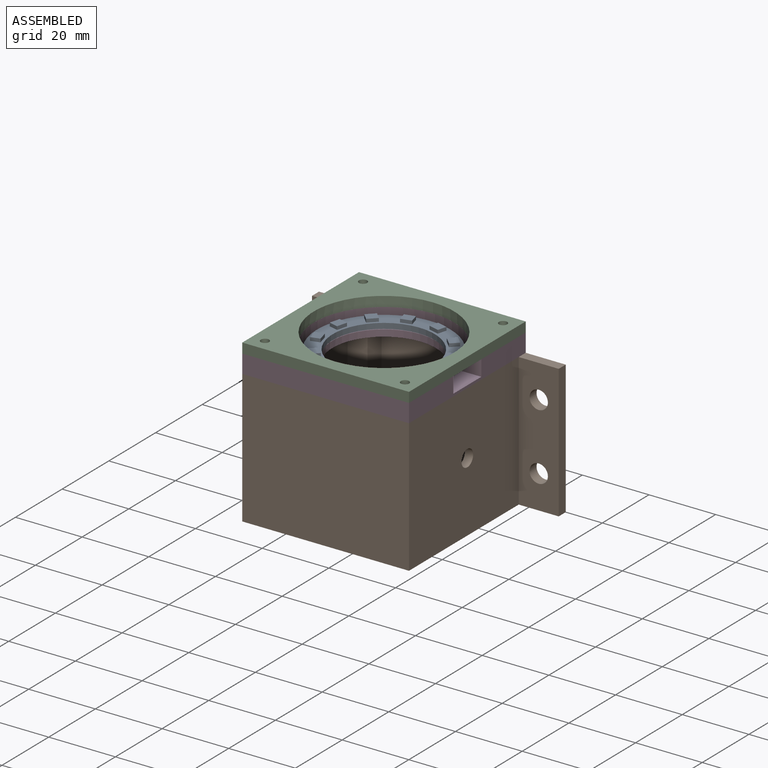
[diagram: assembled view]
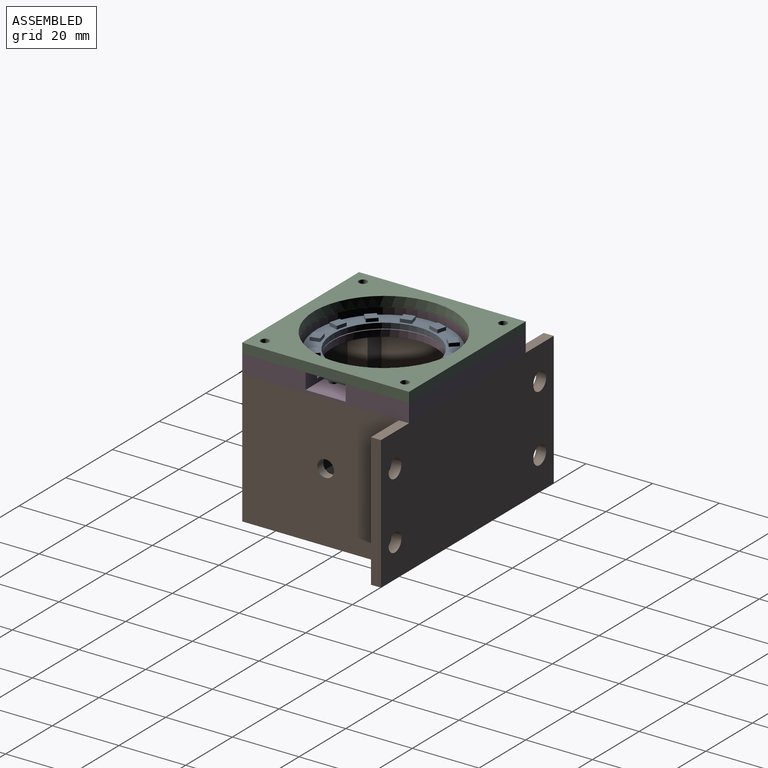
[diagram: assembled view, second angle]
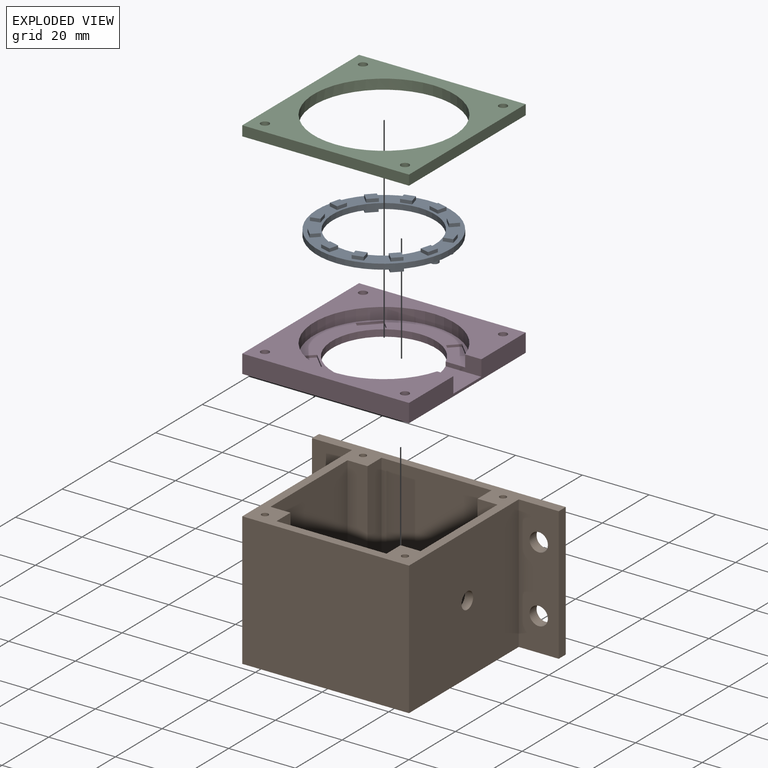
[diagram: exploded view]
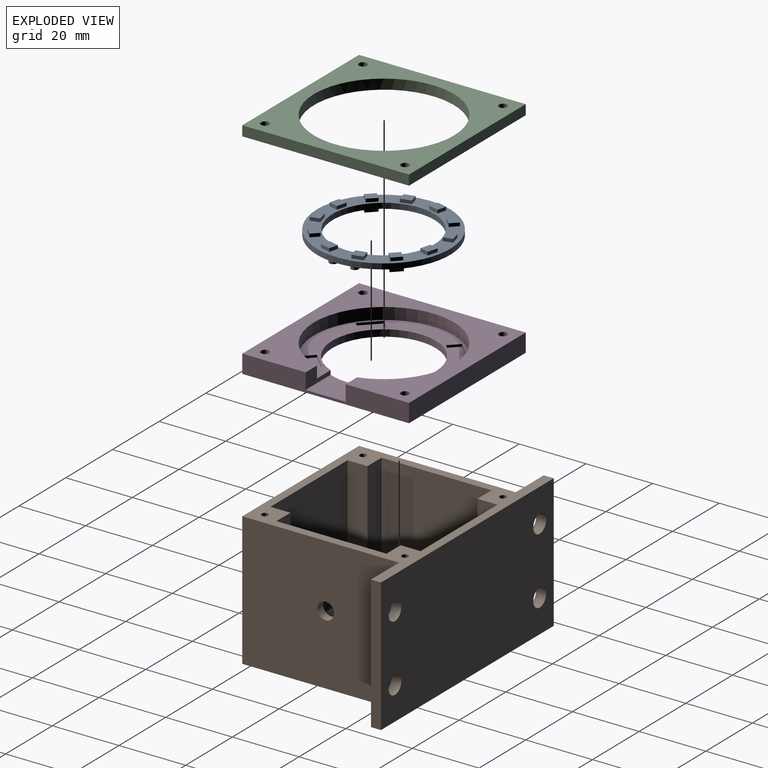
[diagram: exploded view, second angle]
ASSEMBLY  parts=4 mates=4
PART A: 88 faces, bbox 40x40x4.1 mm
  f0: plane 40x40mm, normal (0,0,1), area 415.5mm2, adj f1,f2,f3,f29,f30,f31,f32,f34
  f1: plane 2.4x1.39mm, normal (0.5,0.87,0), area 2.8mm2, adj f0,f2,f3,f86
  f2: plane 2.75x1.59mm, normal (0.87,-0.5,0), area 3.2mm2, adj f0,f1,f86,f87
  f3: plane 2.75x1.59mm, normal (-0.87,0.5,0), area 3.2mm2, adj f0,f1,f86,f87
  f4: cylinder r=1.18mm len=2.37mm, axis (0,0,-1), area 11.2mm2, adj f5,f28
  f5: plane 2.37x2.37mm, normal (0,0,-1), area 4.4mm2, adj f4
  f6: plane 3.5x1.5mm, normal (1,0,0), area 5.2mm2, adj f7,f9,f10,f28
  f7: plane 1.5x1.5mm, normal (0,1,0), area 2.2mm2, adj f6,f8,f10,f28
  f8: plane 3.5x1.5mm, normal (-1,0,0), area 5.2mm2, adj f7,f9,f10,f28
  f9: plane 1.5x1.5mm, normal (0,-1,0), area 2.2mm2, adj f6,f8,f10,f28
  f10: plane 3.5x1.5mm, normal (0,0,-1), area 5.2mm2, adj f6,f7,f8,f9
  f11: plane 3.5x1.5mm, normal (-1,0,0), area 5.2mm2, adj f12,f14,f15,f28
  f12: plane 1.5x1.5mm, normal (0,-1,0), area 2.2mm2, adj f11,f13,f15,f28
  f13: plane 3.5x1.5mm, normal (1,0,0), area 5.2mm2, adj f12,f14,f15,f28
  f14: plane 1.5x1.5mm, normal (0,1,0), area 2.2mm2, adj f11,f13,f15,f28
  f15: plane 3.5x1.5mm, normal (0,0,-1), area 5.2mm2, adj f11,f12,f13,f14
  f16: plane 3.5x1.5mm, normal (0,-1,0), area 5.2mm2, adj f17,f19,f20,f28
  f17: plane 1.5x1.5mm, normal (1,0,0), area 2.2mm2, adj f16,f18,f20,f28
  f18: plane 3.5x1.5mm, normal (0,1,0), area 5.2mm2, adj f17,f19,f20,f28
  f19: plane 1.5x1.5mm, normal (-1,0,0), area 2.2mm2, adj f16,f18,f20,f28
  f20: plane 3.5x1.5mm, normal (0,0,-1), area 5.2mm2, adj f16,f17,f18,f19
  f21: plane 3.5x1.5mm, normal (0,1,0), area 5.2mm2, adj f22,f24,f25,f28
  f22: plane 1.5x1.5mm, normal (-1,0,0), area 2.2mm2, adj f21,f23,f25,f28
  f23: plane 3.5x1.5mm, normal (0,-1,0), area 5.2mm2, adj f22,f24,f25,f28
  f24: plane 1.5x1.5mm, normal (1,0,0), area 2.2mm2, adj f21,f23,f25,f28
  f25: plane 3.5x1.5mm, normal (0,0,-1), area 5.2mm2, adj f21,f22,f23,f24
  f26: cylinder r=1.18mm len=2.37mm, axis (0,0,-1), area 11.2mm2, adj f27,f28
  f27: plane 2.37x2.37mm, normal (0,0,-1), area 4.4mm2, adj f26
  f28: plane 40x40mm, normal (0,0,-1), area 491.4mm2, adj f4,f6,f7,f8,f9,f11,f12,f13
  f29: plane 2.75x1.59mm, normal (-0.5,0.87,0), area 3.2mm2, adj f0,f30,f32,f33
  f30: plane 2.4x1.39mm, normal (0.87,0.5,0), area 2.8mm2, adj f0,f29,f31,f33
  f31: plane 2.75x1.59mm, normal (0.5,-0.87,0), area 3.2mm2, adj f0,f30,f32,f33
  f32: plane 2.4x1.39mm, normal (-0.87,-0.5,0), area 2.8mm2, adj f0,f29,f31,f33
  f33: plane 4.14x3.99mm, normal (0,0,1), area 8.8mm2, adj f29,f30,f31,f32
  f34: plane 3.18x1mm, normal (-1,0,0), area 3.2mm2, adj f0,f35,f37,f38
  f35: plane 2.77x1mm, normal (0,1,0), area 2.8mm2, adj f0,f34,f36,f38
  f36: plane 3.18x1mm, normal (1,0,0), area 3.2mm2, adj f0,f35,f37,f38
  f37: plane 2.77x1mm, normal (0,-1,0), area 2.8mm2, adj f0,f34,f36,f38
  f38: plane 3.18x2.77mm, normal (0,0,1), area 8.8mm2, adj f34,f35,f36,f37
  f39: plane 2.75x1.59mm, normal (-0.5,-0.87,0), area 3.2mm2, adj f0,f40,f42,f43
  f40: plane 2.4x1.39mm, normal (-0.87,0.5,0), area 2.8mm2, adj f0,f39,f41,f43
  f41: plane 2.75x1.59mm, normal (0.5,0.87,0), area 3.2mm2, adj f0,f40,f42,f43
  f42: plane 2.4x1.39mm, normal (0.87,-0.5,0), area 2.8mm2, adj f0,f39,f41,f43
  f43: plane 4.14x3.99mm, normal (0,0,1), area 8.8mm2, adj f39,f40,f41,f42
  f44: plane 2.75x1.59mm, normal (0.5,-0.87,0), area 3.2mm2, adj f0,f45,f47,f48
  f45: plane 2.4x1.39mm, normal (-0.87,-0.5,0), area 2.8mm2, adj f0,f44,f46,f48
  f46: plane 2.75x1.59mm, normal (-0.5,0.87,0), area 3.2mm2, adj f0,f45,f47,f48
  f47: plane 2.4x1.39mm, normal (0.87,0.5,0), area 2.8mm2, adj f0,f44,f46,f48
  f48: plane 4.14x3.99mm, normal (0,0,1), area 8.8mm2, adj f44,f45,f46,f47
  f49: plane 3.18x1mm, normal (1,0,0), area 3.2mm2, adj f0,f50,f52,f53
  f50: plane 2.77x1mm, normal (0,-1,0), area 2.8mm2, adj f0,f49,f51,f53
  f51: plane 3.18x1mm, normal (-1,0,0), area 3.2mm2, adj f0,f50,f52,f53
  f52: plane 2.77x1mm, normal (0,1,0), area 2.8mm2, adj f0,f49,f51,f53
  f53: plane 3.18x2.77mm, normal (0,0,1), area 8.8mm2, adj f49,f50,f51,f52
  f54: plane 2.75x1.59mm, normal (0.5,0.87,0), area 3.2mm2, adj f0,f55,f57,f58
  f55: plane 2.4x1.39mm, normal (0.87,-0.5,0), area 2.8mm2, adj f0,f54,f56,f58
  f56: plane 2.75x1.59mm, normal (-0.5,-0.87,0), area 3.2mm2, adj f0,f55,f57,f58
  f57: plane 2.4x1.39mm, normal (-0.87,0.5,0), area 2.8mm2, adj f0,f54,f56,f58
  f58: plane 4.14x3.99mm, normal (0,0,1), area 8.8mm2, adj f54,f55,f56,f57
  f59: plane 2.75x1.59mm, normal (0.87,0.5,0), area 3.2mm2, adj f0,f60,f62,f63
  f60: plane 2.4x1.39mm, normal (0.5,-0.87,0), area 2.8mm2, adj f0,f59,f61,f63
  f61: plane 2.75x1.59mm, normal (-0.87,-0.5,0), area 3.2mm2, adj f0,f60,f62,f63
  f62: plane 2.4x1.39mm, normal (-0.5,0.87,0), area 2.8mm2, adj f0,f59,f61,f63
  f63: plane 4.14x3.99mm, normal (0,0,1), area 8.8mm2, adj f59,f60,f61,f62
  f64: plane 2.75x1.59mm, normal (0.87,-0.5,0), area 3.2mm2, adj f0,f65,f67,f68
  f65: plane 2.4x1.39mm, normal (-0.5,-0.87,0), area 2.8mm2, adj f0,f64,f66,f68
  f66: plane 2.75x1.59mm, normal (-0.87,0.5,0), area 3.2mm2, adj f0,f65,f67,f68
  f67: plane 2.4x1.39mm, normal (0.5,0.87,0), area 2.8mm2, adj f0,f64,f66,f68
  f68: plane 4.14x3.99mm, normal (0,0,1), area 8.8mm2, adj f64,f65,f66,f67
  f69: plane 3.18x1mm, normal (0,-1,0), area 3.2mm2, adj f0,f70,f72,f73
  f70: plane 2.77x1mm, normal (-1,0,0), area 2.8mm2, adj f0,f69,f71,f73
  f71: plane 3.18x1mm, normal (0,1,0), area 3.2mm2, adj f0,f70,f72,f73
  f72: plane 2.77x1mm, normal (1,0,0), area 2.8mm2, adj f0,f69,f71,f73
  f73: plane 3.18x2.77mm, normal (0,0,1), area 8.8mm2, adj f69,f70,f71,f72
  f74: plane 2.75x1.59mm, normal (-0.87,-0.5,0), area 3.2mm2, adj f0,f75,f77,f78
  f75: plane 2.4x1.39mm, normal (-0.5,0.87,0), area 2.8mm2, adj f0,f74,f76,f78
  f76: plane 2.75x1.59mm, normal (0.87,0.5,0), area 3.2mm2, adj f0,f75,f77,f78
  f77: plane 2.4x1.39mm, normal (0.5,-0.87,0), area 2.8mm2, adj f0,f74,f76,f78
  f78: plane 4.14x3.99mm, normal (0,0,1), area 8.8mm2, adj f74,f75,f76,f77
  f79: cylinder r=15.3mm len=30.6mm, axis (0,0,-1), area 156.7mm2, adj f0,f28
  f80: cylinder r=20mm len=40mm, axis (0,0,1), area 204.8mm2, adj f0,f28
  f81: plane 3.18x2.77mm, normal (0,0,1), area 8.8mm2, adj f82,f83,f84,f85
  f82: plane 2.77x1mm, normal (-1,0,0), area 2.8mm2, adj f0,f81,f83,f85
  f83: plane 3.18x1mm, normal (0,-1,0), area 3.2mm2, adj f0,f81,f82,f84
  f84: plane 2.77x1mm, normal (1,0,0), area 2.8mm2, adj f0,f81,f83,f85
  f85: plane 3.18x1mm, normal (0,1,0), area 3.2mm2, adj f0,f81,f82,f84
  f86: plane 4.14x3.99mm, normal (0,0,1), area 8.8mm2, adj f1,f2,f3,f87
  f87: plane 2.4x1.39mm, normal (-0.5,-0.87,0), area 2.8mm2, adj f0,f2,f3,f86
PART B: 52 faces, bbox 50x74x40 mm
  f0: plane 45x45mm, normal (0,0,1), area 1786.8mm2, adj f10,f11,f12,f13,f14,f15,f16,f21
  f1: plane 74x50mm, normal (0,0,-1), area 2502.4mm2, adj f3,f4,f5,f6,f7,f25,f26,f27
  f2: plane 74x50mm, normal (0,0,1), area 678.4mm2, adj f3,f4,f5,f6,f7,f10,f11,f12
  f3: plane 40x3mm, normal (0,1,0), area 120mm2, adj f1,f2,f4,f7
  f4: plane 74x40mm, normal (-1,0,0), area 2865mm2, adj f1,f2,f3,f8,f9,f27,f30,f31
  f5: plane 50x40mm, normal (1,0,0), area 2000mm2, adj f1,f2,f6,f28
  f6: plane 47x40mm, normal (0,1,0), area 1860.4mm2, adj f1,f2,f5,f7,f47
  f7: plane 40x12mm, normal (1,0,0), area 432.5mm2, adj f1,f2,f3,f6,f8,f9
  f8: cylinder r=2.75mm len=5.5mm, axis (-1,0,0), area 51.8mm2, adj f4,f7
  f9: cylinder r=2.75mm len=5.5mm, axis (-1,0,0), area 51.8mm2, adj f4,f7
  f10: plane 37.5x33mm, normal (-1,0,0), area 1237.5mm2, adj f0,f2,f11,f32
  f11: plane 37.5x6mm, normal (0,-1,0), area 225mm2, adj f0,f2,f10,f12
  f12: plane 37.5x6mm, normal (-1,0,0), area 225mm2, adj f0,f2,f11,f13
  f13: plane 37.5x33mm, normal (0,-1,0), area 1217.9mm2, adj f0,f2,f12,f14,f47
  f14: plane 37.5x6mm, normal (1,0,0), area 225mm2, adj f0,f2,f13,f15
  f15: plane 37.5x6mm, normal (0,-1,0), area 225mm2, adj f0,f2,f14,f16
  f16: plane 37.5x33mm, normal (1,0,0), area 1237.5mm2, adj f0,f2,f15,f36
  f17: cylinder r=1mm len=20mm, axis (0,0,1), area 125.7mm2, adj f2,f18
  f18: plane 2x2mm, normal (0,0,1), area 3.1mm2, adj f17
  f19: cylinder r=1mm len=20mm, axis (0,0,1), area 125.7mm2, adj f2,f20
  f20: plane 2x2mm, normal (0,0,1), area 3.1mm2, adj f19
  f21: cylinder r=1.88mm len=6.5mm, axis (0,0,-1), area 76.6mm2, adj f0,f22
  f22: plane 3.75x3.75mm, normal (0,0,1), area 6.1mm2, adj f21,f26
  f23: cylinder r=1.88mm len=6.5mm, axis (0,0,-1), area 76.6mm2, adj f0,f24
  f24: plane 3.75x3.75mm, normal (0,0,1), area 6.1mm2, adj f23,f25
  f25: cylinder r=1.25mm len=9mm, axis (0,0,1), area 70.7mm2, adj f1,f24
  f26: cylinder r=1.25mm len=9mm, axis (0,0,1), area 70.7mm2, adj f1,f22
  f27: plane 40x3mm, normal (0,-1,0), area 120mm2, adj f1,f2,f4,f29
  f28: plane 47x40mm, normal (0,-1,0), area 1880mm2, adj f1,f2,f5,f29
  f29: plane 40x12mm, normal (1,0,0), area 432.5mm2, adj f1,f2,f27,f28,f30,f31
  f30: cylinder r=2.75mm len=5.5mm, axis (-1,0,0), area 51.8mm2, adj f4,f29
  f31: cylinder r=2.75mm len=5.5mm, axis (-1,0,0), area 51.8mm2, adj f4,f29
  f32: plane 37.5x6mm, normal (0,1,0), area 225mm2, adj f0,f2,f10,f33
  f33: plane 37.5x6mm, normal (-1,0,0), area 225mm2, adj f0,f2,f32,f34
  f34: plane 37.5x33mm, normal (0,1,0), area 1237.5mm2, adj f0,f2,f33,f35
  f35: plane 37.5x6mm, normal (1,0,0), area 225mm2, adj f0,f2,f34,f36
  f36: plane 37.5x6mm, normal (0,1,0), area 225mm2, adj f0,f2,f16,f35
  f37: cylinder r=1mm len=20mm, axis (0,0,1), area 125.7mm2, adj f2,f38
  f38: plane 2x2mm, normal (0,0,1), area 3.1mm2, adj f37
  f39: cylinder r=1mm len=20mm, axis (0,0,1), area 125.7mm2, adj f2,f40
  f40: plane 2x2mm, normal (0,0,1), area 3.1mm2, adj f39
  f41: cylinder r=1.88mm len=6.5mm, axis (0,0,-1), area 76.6mm2, adj f0,f42
  f42: plane 3.75x3.75mm, normal (0,0,1), area 6.1mm2, adj f41,f46
  f43: cylinder r=1.88mm len=6.5mm, axis (0,0,-1), area 76.6mm2, adj f0,f44
  f44: plane 3.75x3.75mm, normal (0,0,1), area 6.1mm2, adj f43,f45
  f45: cylinder r=1.25mm len=9mm, axis (0,0,1), area 70.7mm2, adj f1,f44
  f46: cylinder r=1.25mm len=9mm, axis (0,0,1), area 70.7mm2, adj f1,f42
  f47: cylinder r=2.5mm len=5mm, axis (0,1,0), area 39.3mm2, adj f6,f13
  f48: plane 10x2.5mm, normal (0,-1,0), area 25mm2, adj f0,f1,f49,f51
  f49: plane 5x2.5mm, normal (1,0,0), area 12.5mm2, adj f0,f1,f48,f50
  f50: plane 10x2.5mm, normal (0,1,0), area 25mm2, adj f0,f1,f49,f51
  f51: plane 5x2.5mm, normal (-1,0,0), area 12.5mm2, adj f0,f1,f48,f50
PART C: 11 faces, bbox 50x50x3 mm
  f0: cylinder r=1.25mm len=3mm, axis (0,0,1), area 23.6mm2, adj f1,f2
  f1: plane 50x50mm, normal (0,0,1), area 1094.9mm2, adj f0,f3,f4,f5,f6,f7,f8,f9
  f2: plane 50x50mm, normal (0,0,-1), area 1094.9mm2, adj f0,f3,f4,f5,f6,f7,f8,f9
  f3: plane 50x3mm, normal (-1,0,0), area 150mm2, adj f1,f2,f8,f10
  f4: cylinder r=21mm len=42mm, axis (0,0,1), area 395.8mm2, adj f1,f2
  f5: cylinder r=1.25mm len=3mm, axis (0,0,1), area 23.6mm2, adj f1,f2
  f6: cylinder r=1.25mm len=3mm, axis (0,0,1), area 23.6mm2, adj f1,f2
  f7: cylinder r=1.25mm len=3mm, axis (0,0,1), area 23.6mm2, adj f1,f2
  f8: plane 50x3mm, normal (0,1,0), area 150mm2, adj f1,f2,f3,f9
  f9: plane 50x3mm, normal (1,0,0), area 150mm2, adj f1,f2,f8,f10
  f10: plane 50x3mm, normal (0,-1,0), area 150mm2, adj f1,f2,f3,f9
PART D: 36 faces, bbox 50x50x5.5 mm
  f0: plane 42x41.12mm, normal (0,0,1), area 451.4mm2, adj f2,f12,f14,f15,f16,f17,f18,f19
  f1: plane 50x5.5mm, normal (0,1,0), area 218mm2, adj f3,f5,f6,f7,f13,f14,f15
  f2: cylinder r=15.5mm len=31mm, axis (0,0,-1), area 179.4mm2, adj f0,f7,f13,f14,f15
  f3: plane 50x5.5mm, normal (-1,0,0), area 275mm2, adj f1,f4,f6,f7
  f4: plane 50x5.5mm, normal (0,-1,0), area 275mm2, adj f3,f5,f6,f7
  f5: plane 50x5.5mm, normal (1,0,0), area 275mm2, adj f1,f4,f6,f7
  f6: plane 50x50mm, normal (0,0,1), area 1043.5mm2, adj f1,f3,f4,f5,f8,f9,f10,f11
  f7: plane 50x50mm, normal (0,0,-1), area 1725.6mm2, adj f1,f2,f3,f4,f5,f8,f9,f10
  f8: cylinder r=1.25mm len=5.5mm, axis (0,0,1), area 43.2mm2, adj f6,f7
  f9: cylinder r=1.25mm len=5.5mm, axis (0,0,1), area 43.2mm2, adj f6,f7
  f10: cylinder r=1.25mm len=5.5mm, axis (0,0,1), area 43.2mm2, adj f6,f7
  f11: cylinder r=1.25mm len=5.5mm, axis (0,0,1), area 43.2mm2, adj f6,f7
  f12: cylinder r=21mm len=42mm, axis (0,0,1), area 419.2mm2, adj f0,f6,f14,f15
  f13: plane 12x10.71mm, normal (0,0,1), area 118.8mm2, adj f1,f2,f14,f15
  f14: plane 10.71x4.75mm, normal (1,0,0), area 30.4mm2, adj f0,f1,f2,f6,f12,f13
  f15: plane 10.71x4.75mm, normal (-1,0,0), area 30.4mm2, adj f0,f1,f2,f6,f12,f13
  f16: plane 4.95x4.95mm, normal (0.71,-0.71,0), area 4.9mm2, adj f0,f17,f19,f20
  f17: plane 2.83x2.83mm, normal (0.71,0.71,0), area 2.8mm2, adj f0,f16,f18,f20
  f18: plane 4.95x4.95mm, normal (-0.71,0.71,0), area 4.9mm2, adj f0,f17,f19,f20
  f19: plane 2.83x2.83mm, normal (-0.71,-0.71,0), area 2.8mm2, adj f0,f16,f18,f20
  f20: plane 7.78x7.78mm, normal (0,0,1), area 28mm2, adj f16,f17,f18,f19
  f21: plane 4.95x4.95mm, normal (-0.71,-0.71,0), area 4.9mm2, adj f0,f22,f24,f25
  f22: plane 2.83x2.83mm, normal (0.71,-0.71,0), area 2.8mm2, adj f0,f21,f23,f25
  f23: plane 4.95x4.95mm, normal (0.71,0.71,0), area 4.9mm2, adj f0,f22,f24,f25
  f24: plane 2.83x2.83mm, normal (-0.71,0.71,0), area 2.8mm2, adj f0,f21,f23,f25
  f25: plane 7.78x7.78mm, normal (0,0,1), area 28mm2, adj f21,f22,f23,f24
  f26: plane 4.95x4.95mm, normal (0.71,-0.71,0), area 4.9mm2, adj f0,f27,f29,f30
  f27: plane 2.83x2.83mm, normal (0.71,0.71,0), area 2.8mm2, adj f0,f26,f28,f30
  f28: plane 4.95x4.95mm, normal (-0.71,0.71,0), area 4.9mm2, adj f0,f27,f29,f30
  f29: plane 2.83x2.83mm, normal (-0.71,-0.71,0), area 2.8mm2, adj f0,f26,f28,f30
  f30: plane 7.78x7.78mm, normal (0,0,1), area 28mm2, adj f26,f27,f28,f29
  f31: plane 4.95x4.95mm, normal (0.71,0.71,0), area 4.9mm2, adj f0,f32,f34,f35
  f32: plane 2.83x2.83mm, normal (-0.71,0.71,0), area 2.8mm2, adj f0,f31,f33,f35
  f33: plane 4.95x4.95mm, normal (-0.71,-0.71,0), area 4.9mm2, adj f0,f32,f34,f35
  f34: plane 2.83x2.83mm, normal (0.71,-0.71,0), area 2.8mm2, adj f0,f31,f33,f35
  f35: plane 7.78x7.78mm, normal (0,0,1), area 28mm2, adj f31,f32,f33,f34
PLACE A rot(axis=(0,0,-1),135deg) t=(1.44,24.38,22.53)mm
PLACE B rot(axis=(0,0,-1),90deg) t=(15.71,21.14,-19.72)mm
PLACE C rot(axis=(0,0,-1),90deg) t=(-23.58,49.48,25.78)mm
PLACE D rot(axis=(0,0,-1),90deg) t=(-23.58,49.48,20.28)mm
MATE fastened B.f39 <-> D.f10  axis (0,0,1) through (-19.58,45.48,20.28)mm
MATE fastened C.f7 <-> D.f10  axis (0,0,-1) through (-19.58,45.48,25.78)mm
MATE planar D.f13 <-> A.f4  axis (0,0,1) through (21.47,24.48,21.03)mm
MATE revolute D.f9 <-> B.f37  axis (0,0,1) through (-19.58,3.48,20.28)mm
